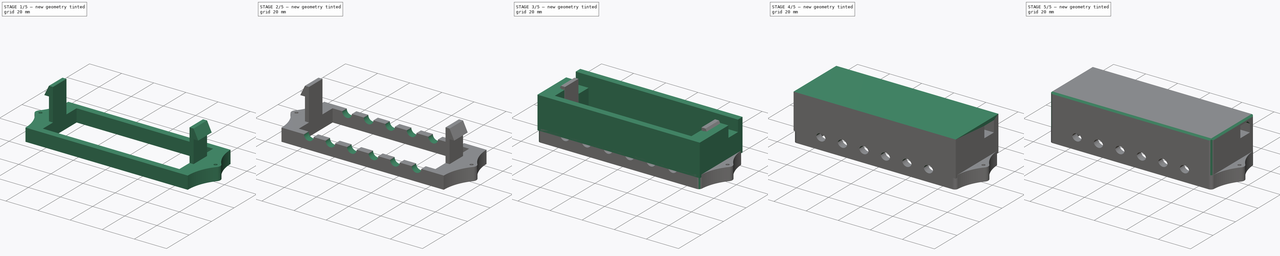
[diagram: build sequence overview — one tinted view per stage of 5, left to right]
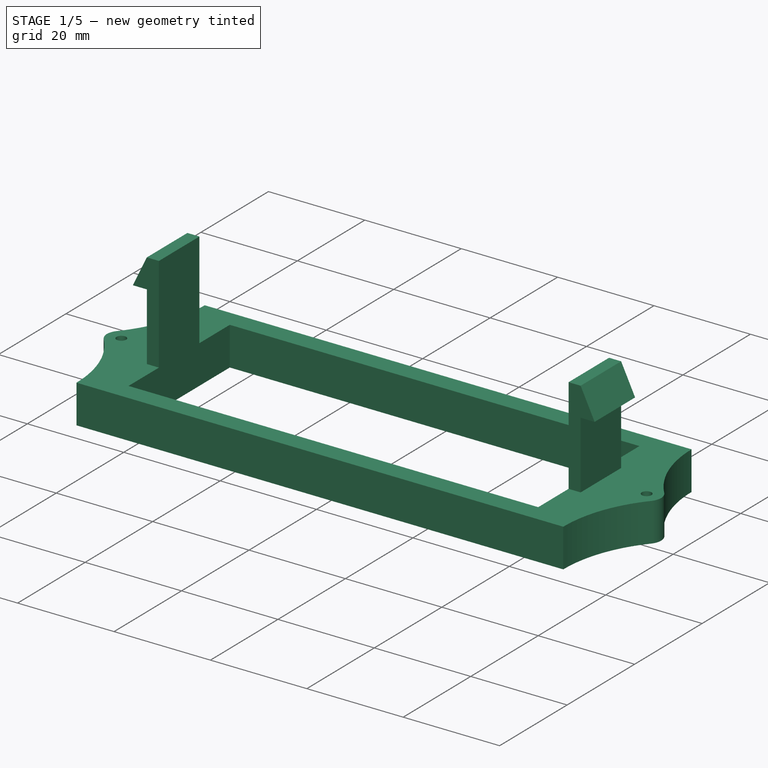
[diagram: stage 1 of 5 — iso view after this stage's code; geometry added in this stage tinted green]
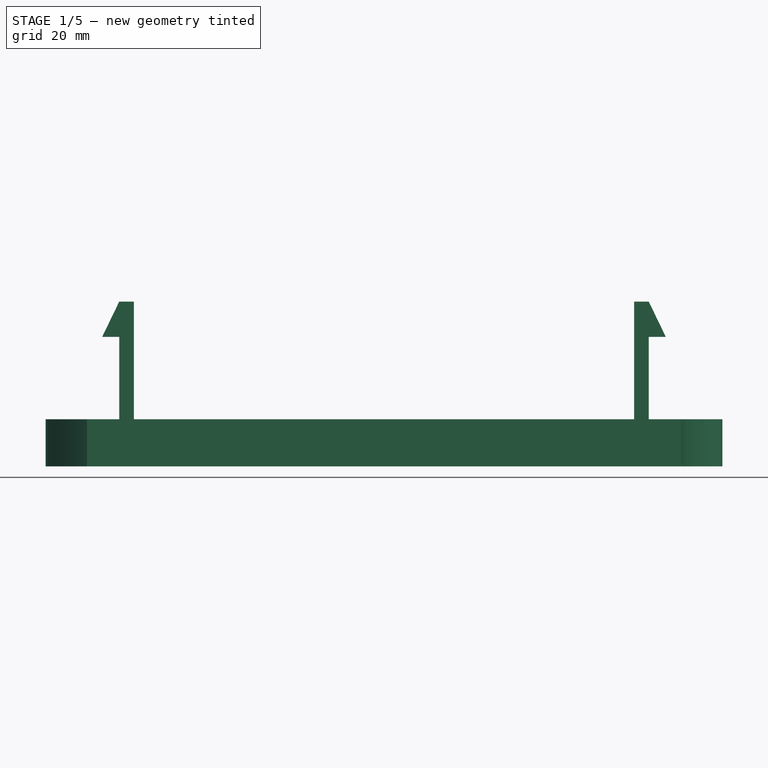
[diagram: stage 1 of 5 — front view after this stage's code; geometry added in this stage tinted green]
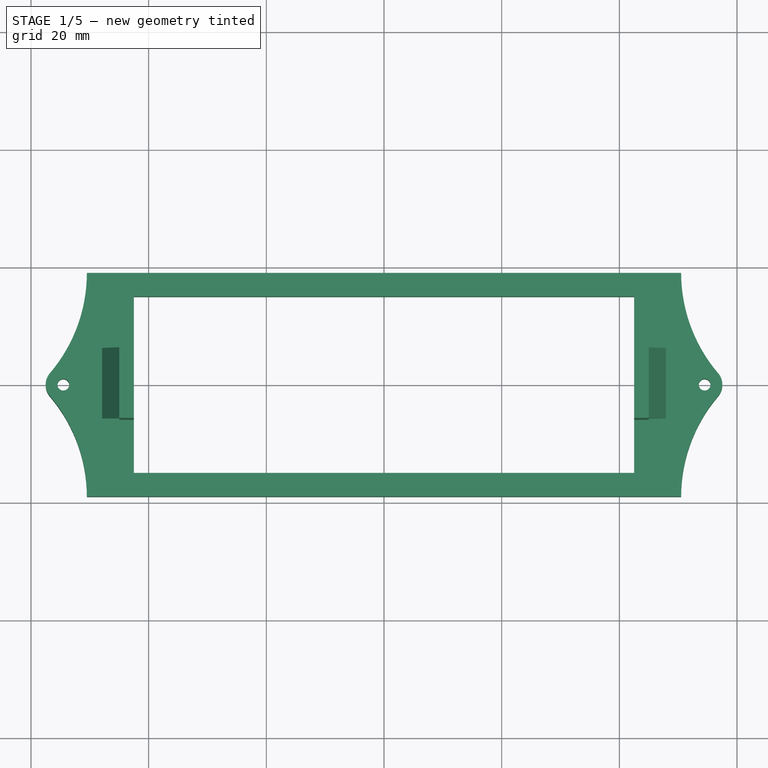
[diagram: stage 1 of 5 — top view after this stage's code; geometry added in this stage tinted green]
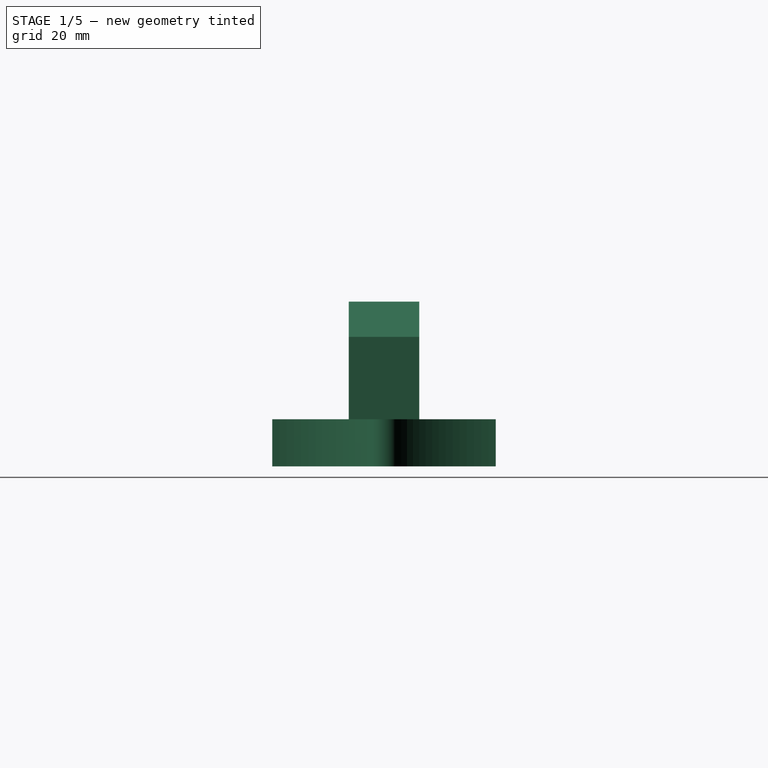
[diagram: stage 1 of 5 — right view after this stage's code; geometry added in this stage tinted green]
FCSTD DOCUMENT  (FreeCAD 2021.1015R24301 +3962 (Git))
Label: electrical cover
License: All rights reserved
LicenseURL: http://en.wikipedia.org/wiki/All_rights_reserved
objects: Sketcher::SketchObject×9, PartDesign::Pad×6, PartDesign::Pocket×3, PartDesign::Chamfer×3, PartDesign::LinearPattern×2, PartDesign::Fillet×2, PartDesign::Body×2, Spreadsheet::Sheet×1, PartDesign::ShapeBinder×1
note: 60 computed .brp shape members not serialized (recipe doc carries the construction recipe); baked Part::Feature solids carry a one-line shape summary decoded from their .brp

FEATURE [Spreadsheet::Sheet] Spreadsheet  label="dim"
  PythonMode = false
  cells = A2='panel_width; B2(panel_width)=85; A3='panel_height; B3(panel_height)=30; A4='bracket_top_down_wall; B4(bracket_top_down_wall)=4; A5='bracket_left_right_wall; B5(bracket_left_right_wall)=8; A6='bracket_mount_hole; B6(bracket_mount_hole)=2; A7='bracket_mount_hole_wall; B7(bracket_mount_hole_wall)=2; A8='bracket_mount_hole_riser; B8(bracket_mount_hole_riser)=0.01; A9='bracket_thickness; B9(bracket_thickness)=5; A11='lock_x; B11(lock_x)=2.5; A12='lock_y; B12(lock_y)=12; A13='lock_height; B13(lock_height)=21; A14='lock_flap_height; B14(lock_flap_height)=6; A15='lock_flap_x; B15(lock_flap_x)=3; A16='lock_hole_slack; B16(lock_hole_slack)=0.5; A18='cover_height; B18(cover_height)=20; A19='cover_roof_height; B19(cover_roof_height)=2; A21='cable_hole_d; B21(cable_hole_d)=6; A22='cable_hole_count; B22(cable_hole_count)=6; A23='cable_hole_total; B23(cable_hole_total)=67
FEATURE [Sketcher::SketchObject] Sketch
  FullyConstrained = true
  MapMode = 5
  Support = -> [XY_Plane]
  expr: Constraints[0] = <<dim>>.panel_height
  expr: Constraints[11] = <<dim>>.bracket_mount_hole_wall + <<dim>>.bracket_mount_hole
  expr: Constraints[28] = <<dim>>.bracket_top_down_wall
  expr: Constraints[2] = <<dim>>.bracket_left_right_wall
  expr: Constraints[33] = <<dim>>.panel_width
  expr: Constraints[39] = <<dim>>.bracket_mount_hole / 2 + <<dim>>.bracket_mount_hole_wall
  expr: Constraints[3] = <<dim>>.bracket_mount_hole
  sketch-geometry (15):
    g0: LineSegment StartX=42.5 StartY=15 StartZ=0 EndX=42.5 EndY=-15 EndZ=0
    g1: Circle CenterX=54.5 CenterY=0 CenterZ=0 NormalX=0 NormalY=0 NormalZ=1 AngleXU=0 Radius=1
    g2: ArcOfCircle CenterX=76.7857 CenterY=19 CenterZ=0 NormalX=0 NormalY=0 NormalZ=1 AngleXU=0 Radius=26.2857 StartAngle=3.14159 EndAngle=3.84757
    g3: ArcOfCircle CenterX=54.5 CenterY=0 CenterZ=0 NormalX=0 NormalY=0 NormalZ=1 AngleXU=0 Radius=3 StartAngle=5.5772 EndAngle=6.98917
    g4: ArcOfCircle CenterX=76.7857 CenterY=-19 CenterZ=0 NormalX=0 NormalY=0 NormalZ=1 AngleXU=0 Radius=26.2857 StartAngle=2.43561 EndAngle=3.14159
    g5: LineSegment StartX=42.5 StartY=15 StartZ=0 EndX=-42.5 EndY=15 EndZ=0
    g6: LineSegment StartX=-42.5 StartY=15 StartZ=0 EndX=-42.5 EndY=-15 EndZ=0
    g7: LineSegment StartX=-42.5 StartY=-15 StartZ=0 EndX=42.5 EndY=-15 EndZ=0
    g8: LineSegment StartX=50.5 StartY=19 StartZ=0 EndX=-50.5 EndY=19 EndZ=0
    g9: LineSegment StartX=50.5 StartY=-19 StartZ=0 EndX=-50.5 EndY=-19 EndZ=0
    g10: ArcOfCircle CenterX=-76.7857 CenterY=19 CenterZ=0 NormalX=0 NormalY=0 NormalZ=1 AngleXU=0 Radius=26.2857 StartAngle=5.5772 EndAngle=6.28319
    g11: ArcOfCircle CenterX=-76.7857 CenterY=-19 CenterZ=0 NormalX=0 NormalY=0 NormalZ=1 AngleXU=0 Radius=26.2857 StartAngle=0 EndAngle=0.705981
    g12: ArcOfCircle CenterX=-54.5 CenterY=0 CenterZ=0 NormalX=0 NormalY=0 NormalZ=1 AngleXU=0 Radius=3 StartAngle=2.43561 EndAngle=3.84757
    g13: Circle CenterX=-54.5 CenterY=0 CenterZ=0 NormalX=0 NormalY=0 NormalZ=1 AngleXU=0 Radius=1
    g14: GeomPoint [constr] X=57.5 Y=0 Z=0
  constraints (40):
    c: DistanceY(g0,g0) = 30
    c: PointOnObject(g1,g-1)
    c: DistanceX(g0,g2) = 8
    c: Diameter(g1) = 2
    c: Coincident(g3,g1)
    c: Symmetric(g2,g4,g-1)
    c: Symmetric(g0,g0,g-1)
    c: Tangent(g3,g2) = 1.5708
    c: Tangent(g4,g3) = 1.5708
    c: Horizontal(g4,g4)
    c: Horizontal(g2,g2)
    c: DistanceX(g2,g1) = 4
    c: Coincident(g0,g5)
    c: Coincident(g5,g6)
    c: Vertical(g6)
    c: Coincident(g6,g7)
    c: Coincident(g7,g0)
    c: Horizontal(g7)
    c: Symmetric(g0,g5,g-1)
    c: Coincident(g8,g2)
    c: Coincident(g9,g4)
    c: Horizontal(g9)
    c: Symmetric(g4,g8,g-1)
    c: Coincident(g10,g8)
    c: Coincident(g11,g9)
    c: PointOnObject(g12,g-1)
    c: Equal(g2,g10)
    c: Equal(g10,g11)
    c: DistanceY(g0,g2) = 4
    c: Tangent(g12,g11) = 1.5708
    c: Tangent(g12,g10) = 1.5708
    c: Horizontal(g10,g2)
    c: Vertical(g10,g11)
    c: DistanceX(g5,g5) = 85
    c: Equal(g12,g3)
    c: Coincident(g13,g12)
    c: Equal(g13,g1)
    c: PointOnObject(g14,g3)
    c: PointOnObject(g14,g-1)
    c: DistanceX(g1,g14) = 3
FEATURE [PartDesign::Pad] Pad
  ClaimChildren = false
  Direction = (1,1,1)
  Fit = 0
  FitJoin = 0
  InnerFit = 0
  InnerFitJoin = 0
  InnerTaperAngle = 0
  InnerTaperAngleRev = 0
  Length = 8
  Length2 = 100
  NewSolid = false
  Profile = -> Sketch
  Refine = true
  Suppress = false
  Type = 0
  _ProfileBasedVersion = 0
  expr: Length = <<dim>>.bracket_thickness + <<dim>>.cable_hole_d / 2
FEATURE [Sketcher::SketchObject] Sketch001
  AttachmentOffset = pos=(0,0,7) rot=(0,0,1;0rad)
  ExternalGeometry = -> [Pad]
  FullyConstrained = true
  MapMode = 5
  Placement = pos=(0,0,7) rot=(0,0,1;0rad)
  Support = -> [XY_Plane]
  expr: Constraints[10] = <<dim>>.lock_y
  expr: Constraints[20] = <<dim>>.lock_x
  expr: Constraints[21] = <<dim>>.lock_y
  expr: Constraints[9] = <<dim>>.lock_x
  sketch-geometry (8):
    g0: LineSegment StartX=42.5 StartY=6 StartZ=0 EndX=45 EndY=6 EndZ=0
    g1: LineSegment StartX=45 StartY=6 StartZ=0 EndX=45 EndY=-6 EndZ=0
    g2: LineSegment StartX=45 StartY=-6 StartZ=0 EndX=42.5 EndY=-6 EndZ=0
    g3: LineSegment StartX=42.5 StartY=-6 StartZ=0 EndX=42.5 EndY=6 EndZ=0
    g4: LineSegment StartX=-42.5 StartY=6 StartZ=0 EndX=-45 EndY=6 EndZ=0
    g5: LineSegment StartX=-45 StartY=6 StartZ=0 EndX=-45 EndY=-6 EndZ=0
    g6: LineSegment StartX=-45 StartY=-6 StartZ=0 EndX=-42.5 EndY=-6 EndZ=0
    g7: LineSegment StartX=-42.5 StartY=-6 StartZ=0 EndX=-42.5 EndY=6 EndZ=0
  constraints (22):
    c: Coincident(g0,g1)
    c: Coincident(g1,g2)
    c: Coincident(g2,g3)
    c: Coincident(g3,g0)
    c: Horizontal(g0)
    c: Horizontal(g2)
    c: Vertical(g3)
    c: PointOnObject(g0,g-4)
    c: Symmetric(g1,g0,g-1)
    c: DistanceX(g0,g0) = 2.5
    c: DistanceY(g3,g3) = 12
    c: Coincident(g4,g5)
    c: Coincident(g5,g6)
    c: Coincident(g6,g7)
    c: Coincident(g7,g4)
    c: Horizontal(g4)
    c: Horizontal(g6)
    c: Vertical(g7)
    c: PointOnObject(g4,g-5)
    c: Symmetric(g5,g4,g-1)
    c: DistanceX(g4,g4) = 2.5
    c: DistanceY(g5,g5) = 12
FEATURE [PartDesign::Pad] Pad001
  BaseFeature = -> Pad
  ClaimChildren = false
  Direction = (1,1,1)
  Fit = 0
  FitJoin = 0
  InnerFit = 0
  InnerFitJoin = 0
  InnerTaperAngle = 0
  InnerTaperAngleRev = 0
  Length = 21
  Length2 = 100
  NewSolid = false
  Profile = -> Sketch001
  Refine = true
  Suppress = false
  Type = 0
  _ProfileBasedVersion = 0
  expr: Length = <<dim>>.lock_height
FEATURE [Sketcher::SketchObject] Sketch002
  ExternalGeometry = -> [Pad001]
  FullyConstrained = true
  MapMode = 5
  Placement = pos=(0,-6,0) rot=(1,0,0;1.5708rad)
  Support = -> [Pad001]
  expr: Constraints[10] = <<dim>>.lock_flap_x
  expr: Constraints[19] = <<dim>>.lock_flap_height
  expr: Constraints[20] = <<dim>>.lock_flap_x
  expr: Constraints[9] = <<dim>>.lock_flap_height
  sketch-geometry (8):
    g0: LineSegment StartX=45 StartY=28 StartZ=0 EndX=47.9 EndY=22 EndZ=0
    g1: LineSegment StartX=47.9 StartY=22 StartZ=0 EndX=44.9 EndY=22 EndZ=0
    g2: LineSegment StartX=44.9 StartY=22 StartZ=0 EndX=44.9 EndY=28 EndZ=0
    g3: LineSegment StartX=44.9 StartY=28 StartZ=0 EndX=45 EndY=28 EndZ=0
    g4: LineSegment StartX=-45 StartY=28 StartZ=0 EndX=-47.9 EndY=22 EndZ=0
    g5: LineSegment StartX=-47.9 StartY=22 StartZ=0 EndX=-44.9 EndY=22 EndZ=0
    g6: LineSegment StartX=-44.9 StartY=22 StartZ=0 EndX=-44.9 EndY=28 EndZ=0
    g7: LineSegment StartX=-44.9 StartY=28 StartZ=0 EndX=-45 EndY=28 EndZ=0
  constraints (22):
    c: Coincident(g-3,g0)
    c: Coincident(g0,g1)
    c: Horizontal(g1)
    c: Coincident(g1,g2)
    c: Vertical(g2)
    c: Coincident(g2,g3)
    c: Coincident(g3,g0)
    c: Horizontal(g3)
    c: DistanceX(g3,g3) = 0.1
    c: DistanceY(g2,g2) = 6
    c: DistanceX(g1,g1) = 3
    c: Coincident(g4,g5)
    c: Horizontal(g5)
    c: Coincident(g5,g6)
    c: Vertical(g6)
    c: Coincident(g6,g7)
    c: Coincident(g7,g4)
    c: Horizontal(g7)
    c: DistanceX(g7,g7) = 0.1
    c: DistanceY(g6,g6) = 6
    c: DistanceX(g5,g5) = 3
    c: Coincident(g4,g-4)
FEATURE [PartDesign::Pad] Pad002
  BaseFeature = -> Pad001
  ClaimChildren = false
  Direction = (1,1,1)
  Fit = 0
  FitJoin = 0
  InnerFit = 0
  InnerFitJoin = 0
  InnerTaperAngle = 0
  InnerTaperAngleRev = 0
  Length = 12
  Length2 = 100
  NewSolid = false
  Profile = -> Sketch002
  Refine = true
  Reversed = true
  Suppress = false
  Type = 0
  _ProfileBasedVersion = 0
  expr: Length = <<dim>>.lock_y
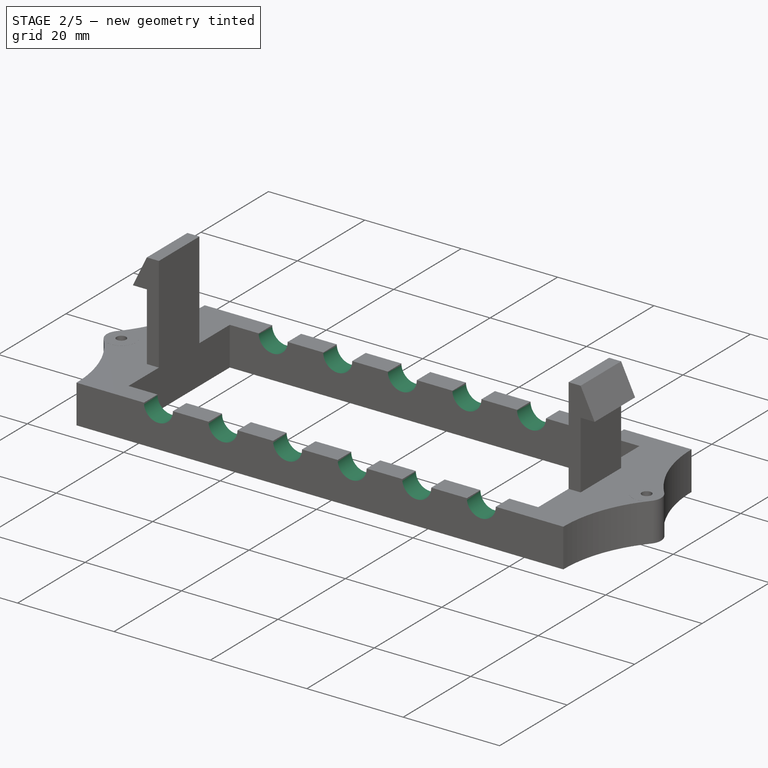
[diagram: stage 2 of 5 — iso view after this stage's code; geometry added in this stage tinted green]
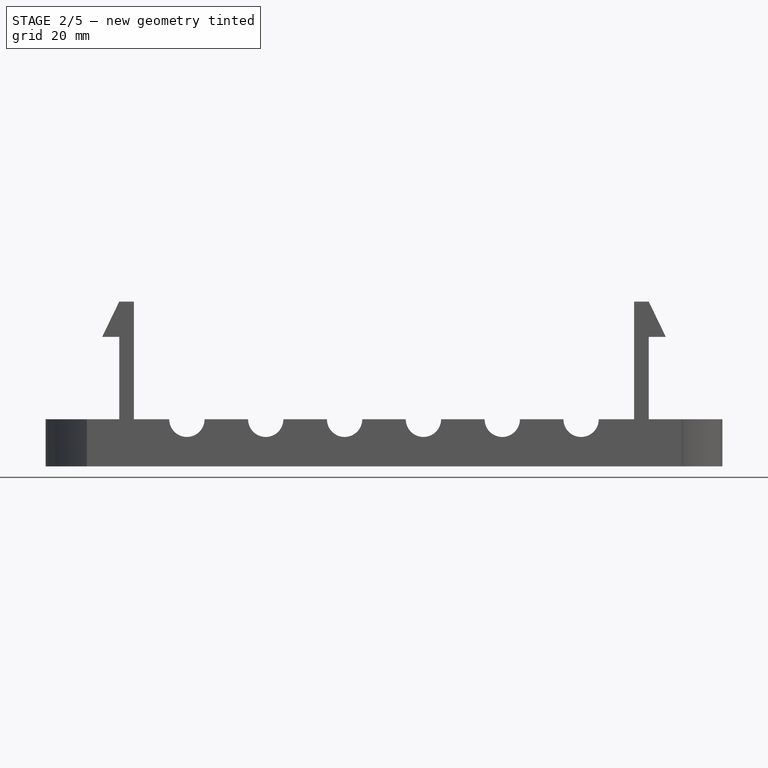
[diagram: stage 2 of 5 — front view after this stage's code; geometry added in this stage tinted green]
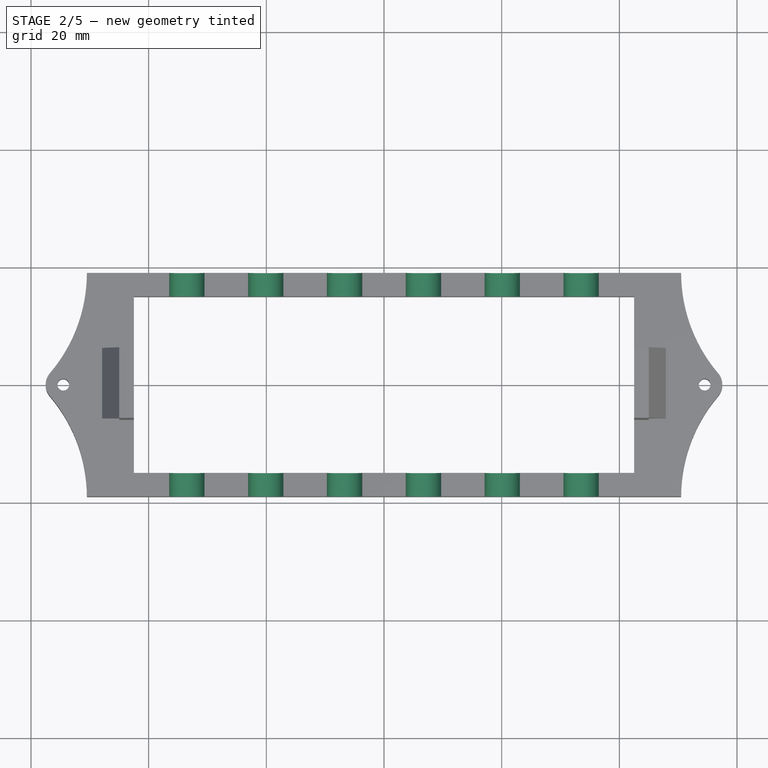
[diagram: stage 2 of 5 — top view after this stage's code; geometry added in this stage tinted green]
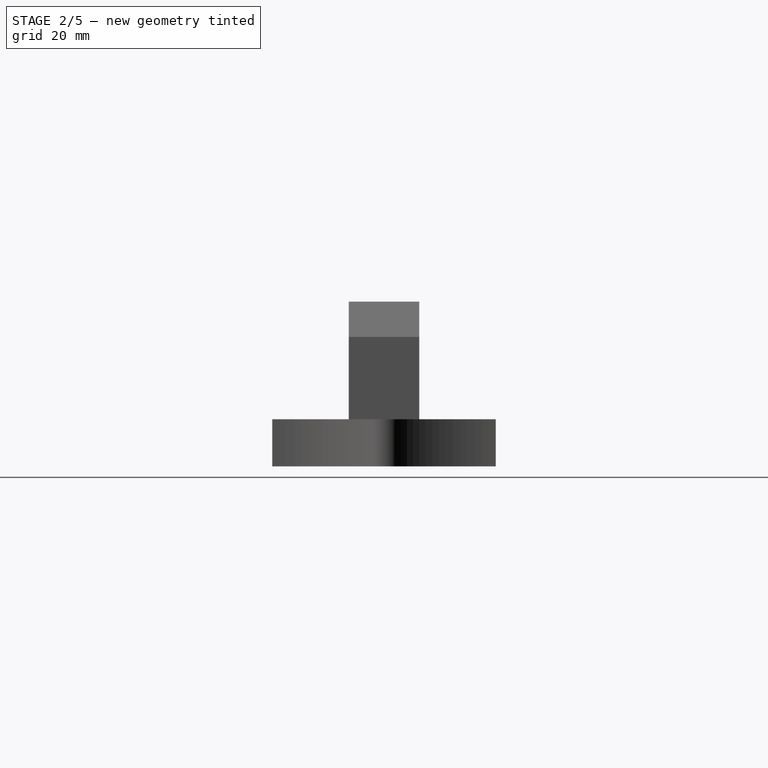
[diagram: stage 2 of 5 — right view after this stage's code; geometry added in this stage tinted green]
FEATURE [Sketcher::SketchObject] Sketch007
  ExternalGeometry = -> [Pad002]
  FullyConstrained = true
  MapMode = 5
  Placement = pos=(0,0,8) rot=(0,0,1;0rad)
  Support = -> [Pad002]
  sketch-geometry (6):
    g0: Circle CenterX=54.5 CenterY=0 CenterZ=0 NormalX=0 NormalY=0 NormalZ=1 AngleXU=0 Radius=1
    g1: GeomPoint [constr] X=57.5 Y=0 Z=0
    g2: Circle CenterX=54.5 CenterY=0 CenterZ=0 NormalX=0 NormalY=0 NormalZ=1 AngleXU=0 Radius=3
    g3: Circle CenterX=-54.5 CenterY=0 CenterZ=0 NormalX=0 NormalY=0 NormalZ=1 AngleXU=0 Radius=1
    g4: GeomPoint [constr] X=-57.5 Y=0 Z=0
    g5: Circle CenterX=-54.5 CenterY=0 CenterZ=0 NormalX=0 NormalY=0 NormalZ=1 AngleXU=0 Radius=3
  constraints (12):
    c: Coincident(g0,g-3)
    c: Equal(g0,g-3)
    c: PointOnObject(g1,g-5)
    c: PointOnObject(g1,g-1)
    c: Coincident(g2,g0)
    c: PointOnObject(g1,g2)
    c: Coincident(g3,g-4)
    c: Equal(g-4,g3)
    c: PointOnObject(g4,g-6)
    c: PointOnObject(g4,g-1)
    c: Coincident(g5,g3)
    c: PointOnObject(g4,g5)
FEATURE [PartDesign::Pad] Pad005
  BaseFeature = -> Pad002
  ClaimChildren = false
  Direction = (1,1,1)
  Fit = 0
  FitJoin = 0
  InnerFit = 0
  InnerFitJoin = 0
  InnerTaperAngle = 0
  InnerTaperAngleRev = 0
  Length = 0.01
  Length2 = 100
  NewSolid = false
  Profile = -> Sketch007
  Refine = true
  Suppress = false
  Type = 0
  _ProfileBasedVersion = 0
  expr: Length = <<dim>>.bracket_mount_hole_riser
FEATURE [Sketcher::SketchObject] Sketch008
  ExternalGeometry = -> [Pad005]
  FullyConstrained = true
  MapMode = 5
  Placement = pos=(0,-15,0) rot=(0,0.707107,0.707107;3.14159rad)
  Support = -> [Pad005]
  expr: Constraints[1] = <<dim>>.cable_hole_d
  expr: Constraints[2] = <<dim>>.cable_hole_total / 2
  sketch-geometry (1):
    g0: Circle CenterX=33.5 CenterY=8 CenterZ=0 NormalX=0 NormalY=0 NormalZ=1 AngleXU=0 Radius=3
  constraints (3):
    c: PointOnObject(g0,g-5)
    c: Diameter(g0) = 6
    c: DistanceX(g-1,g0) = 33.5
FEATURE [PartDesign::Pocket] Pocket001
  BaseFeature = -> Pad005
  ClaimChildren = false
  Fit = 0
  FitJoin = 0
  InnerFit = 0
  InnerFitJoin = 0
  InnerTaperAngle = 0
  InnerTaperAngleRev = 0
  Length = 5
  Length2 = 100
  Midplane = true
  NewSolid = false
  Profile = -> Sketch008
  Refine = true
  Suppress = false
  Type = 1
  _ProfileBasedVersion = 0
FEATURE [PartDesign::LinearPattern] LinearPattern
  BaseFeature = -> Pocket001
  CopyShape = true
  Direction = -> Sketch008 [H_Axis]
  Length = 67
  NewSolid = false
  Occurrences = 6
  OriginalSubs = -> [Pocket001]
  Originals = -> [Pocket001]
  ParallelTransform = true
  Refine = true
  Reversed = true
  SubTransform = true
  Suppress = false
  expr: Length = <<dim>>.cable_hole_total
  expr: Occurrences = <<dim>>.cable_hole_count
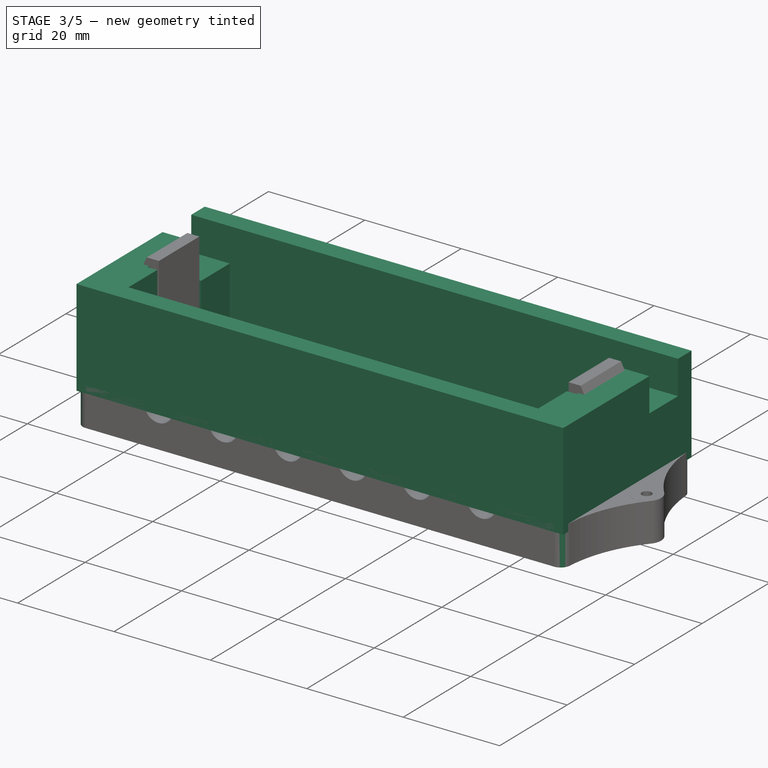
[diagram: stage 3 of 5 — iso view after this stage's code; geometry added in this stage tinted green]
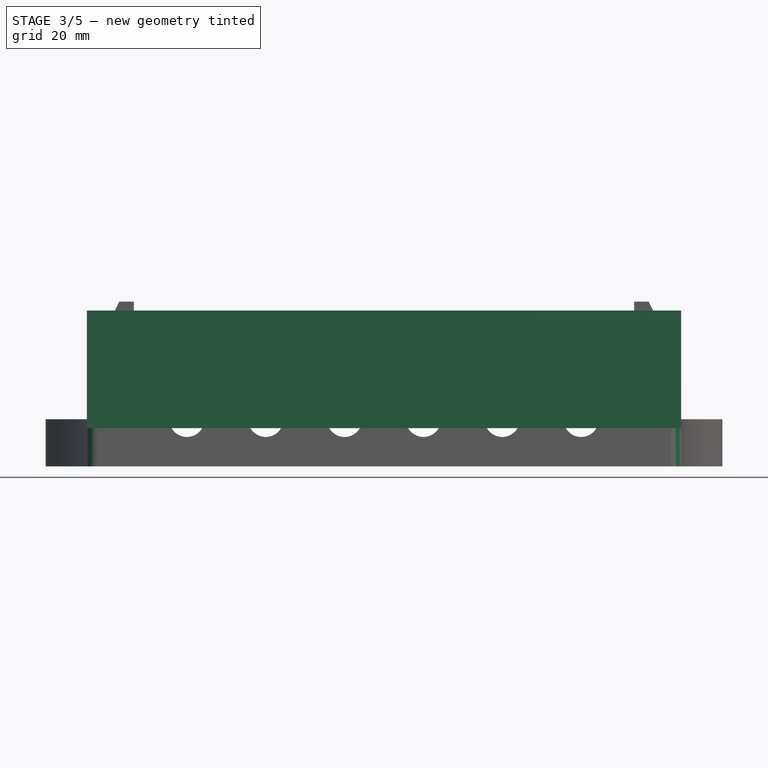
[diagram: stage 3 of 5 — front view after this stage's code; geometry added in this stage tinted green]
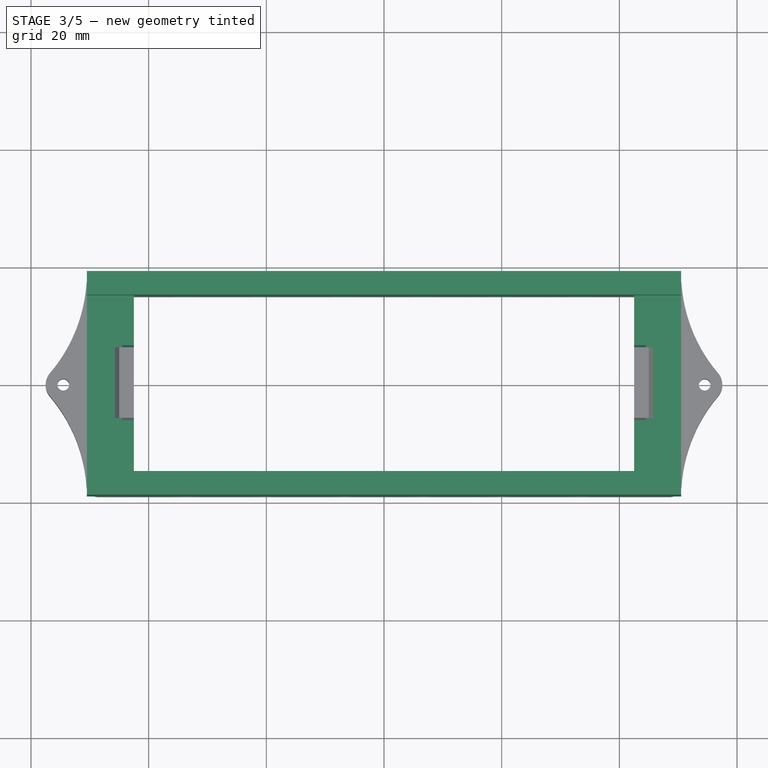
[diagram: stage 3 of 5 — top view after this stage's code; geometry added in this stage tinted green]
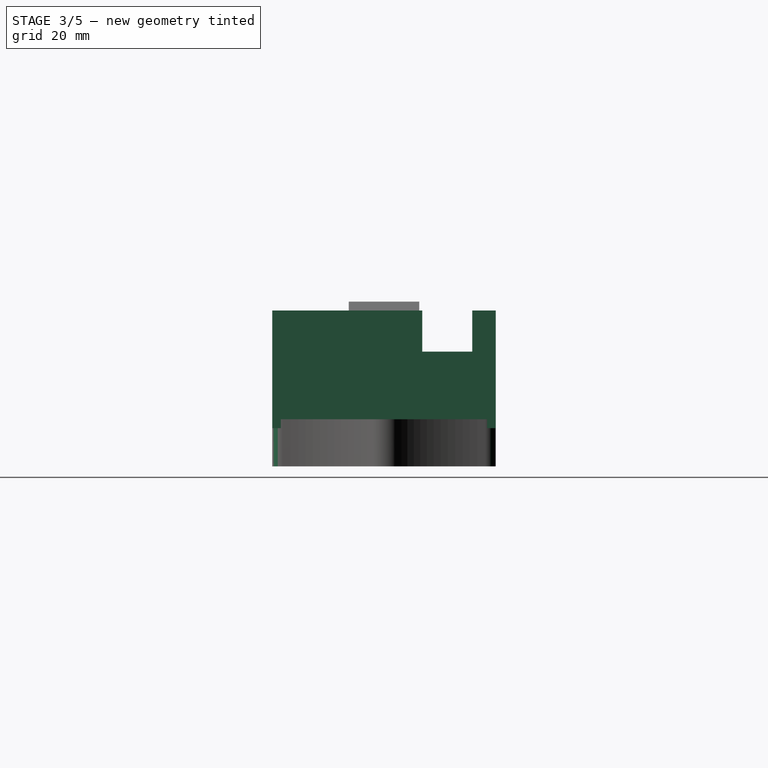
[diagram: stage 3 of 5 — right view after this stage's code; geometry added in this stage tinted green]
FEATURE [PartDesign::ShapeBinder] ShapeBinder
  Support = -> [Pad002]
  TraceSupport = false
FEATURE [Sketcher::SketchObject] Sketch003
  AttachmentOffset = pos=(0,0,6.5) rot=(0,0,1;0rad)
  ExternalGeometry = -> [ShapeBinder]
  FullyConstrained = true
  MapMode = 5
  Placement = pos=(0,0,6.5) rot=(0,0,1;0rad)
  Support = -> [XY_Plane001]
  expr: AttachmentOffset.Base.z = <<dim>>.bracket_thickness + <<dim>>.lock_height - <<dim>>.cover_height + <<dim>>.lock_hole_slack
  expr: Constraints[31] = -<<dim>>.panel_width
  expr: Constraints[32] = <<dim>>.panel_height
  expr: Constraints[35] = <<dim>>.lock_hole_slack
  expr: Constraints[38] = <<dim>>.lock_hole_slack
  sketch-geometry (16):
    g0: LineSegment StartX=-42.5 StartY=-15 StartZ=0 EndX=-42.5 EndY=-6.5 EndZ=0
    g1: LineSegment StartX=-42.5 StartY=-6.5 StartZ=0 EndX=-44.5 EndY=-6.5 EndZ=0
    g2: LineSegment StartX=-44.5 StartY=-6.5 StartZ=0 EndX=-44.5 EndY=6.5 EndZ=0
    g3: LineSegment StartX=-44.5 StartY=6.5 StartZ=0 EndX=-42.5 EndY=6.5 EndZ=0
    g4: LineSegment StartX=-42.5 StartY=6.5 StartZ=0 EndX=-42.5 EndY=15 EndZ=0
    g5: LineSegment StartX=50.5 StartY=19 StartZ=0 EndX=50.5 EndY=-19 EndZ=0
    g6: LineSegment StartX=50.5 StartY=-19 StartZ=0 EndX=-50.5 EndY=-19 EndZ=0
    g7: LineSegment StartX=-50.5 StartY=-19 StartZ=0 EndX=-50.5 EndY=19 EndZ=0
    g8: LineSegment StartX=-50.5 StartY=19 StartZ=0 EndX=50.5 EndY=19 EndZ=0
    g9: LineSegment StartX=-42.5 StartY=15 StartZ=0 EndX=42.5 EndY=15 EndZ=0
    g10: LineSegment StartX=42.5 StartY=15 StartZ=0 EndX=42.5 EndY=6.5 EndZ=0
    g11: LineSegment StartX=42.5 StartY=6.5 StartZ=0 EndX=44.5 EndY=6.5 EndZ=0
    g12: LineSegment StartX=44.5 StartY=6.5 StartZ=0 EndX=44.5 EndY=-6.5 EndZ=0
    g13: LineSegment StartX=44.5 StartY=-6.5 StartZ=0 EndX=42.5 EndY=-6.5 EndZ=0
    g14: LineSegment StartX=42.5 StartY=-6.5 StartZ=0 EndX=42.5 EndY=-15 EndZ=0
    g15: LineSegment StartX=42.5 StartY=-15 StartZ=0 EndX=-42.5 EndY=-15 EndZ=0
  constraints (41):
    c: Vertical(g0)
    c: Coincident(g0,g1)
    c: Horizontal(g1)
    c: Coincident(g1,g2)
    c: Vertical(g2)
    c: Coincident(g2,g3)
    c: Horizontal(g3)
    c: Coincident(g3,g4)
    c: Vertical(g4)
    c: Coincident(g5,g6)
    c: Coincident(g6,g-5)
    c: Coincident(g6,g7)
    c: Coincident(g7,g8)
    c: Coincident(g8,g5)
    c: Coincident(g4,g9)
    c: Horizontal(g9)
    c: Coincident(g9,g10)
    c: Vertical(g10)
    c: Coincident(g10,g11)
    c: Horizontal(g11)
    c: Coincident(g11,g12)
    c: Vertical(g12)
    c: Coincident(g12,g13)
    c: Horizontal(g13)
    c: Coincident(g13,g14)
    c: Vertical(g14)
    c: Coincident(g14,g15)
    c: Coincident(g15,g0)
    c: Horizontal(g15)
    c: Coincident(g4,g-7)
    c: Coincident(g5,g-6)
    c: DistanceX(g9,g9) = -85
    c: DistanceY(g0,g4) = 30
    c: Coincident(g5,g-3)
    c: Symmetric(g7,g5,g-2)
    c: DistanceY(g-7,g3) = 0.5
    c: Symmetric(g0,g3,g-1)
    c: Horizontal(g0,g13)
    c: DistanceX(g-4,g2) = 0.5
    c: Symmetric(g2,g11,g-2)
    c: Vertical(g14,g9)
FEATURE [PartDesign::Pad] Pad003
  ClaimChildren = false
  Direction = (1,1,1)
  Fit = 0
  FitJoin = 0
  InnerFit = 0
  InnerFitJoin = 0
  InnerTaperAngle = 0
  InnerTaperAngleRev = 0
  Length = 20
  Length2 = 100
  NewSolid = false
  Profile = -> Sketch003
  Refine = true
  Suppress = false
  Type = 0
  _ProfileBasedVersion = 0
  expr: Length = <<dim>>.cover_height
FEATURE [Sketcher::SketchObject] Sketch006
  ExternalGeometry = -> [Pad003]
  FullyConstrained = true
  MapMode = 5
  Placement = pos=(42.5,0,0) rot=(0.57735,-0.57735,-0.57735;2.0944rad)
  Support = -> [Pad003]
  expr: Constraints[9] = <<dim>>.lock_flap_height + 2 * <<dim>>.lock_hole_slack
  sketch-geometry (4):
    g0: LineSegment StartX=-6.5 StartY=26.5 StartZ=0 EndX=-15 EndY=26.5 EndZ=0
    g1: LineSegment StartX=-15 StartY=26.5 StartZ=0 EndX=-15 EndY=19.5 EndZ=0
    g2: LineSegment StartX=-15 StartY=19.5 StartZ=0 EndX=-6.5 EndY=19.5 EndZ=0
    g3: LineSegment StartX=-6.5 StartY=19.5 StartZ=0 EndX=-6.5 EndY=26.5 EndZ=0
  constraints (10):
    c: Coincident(g0,g1)
    c: Coincident(g1,g2)
    c: Coincident(g2,g3)
    c: Coincident(g3,g0)
    c: Horizontal(g2)
    c: Vertical(g1)
    c: Vertical(g3)
    c: Coincident(g0,g-3)
    c: Coincident(g0,g-3)
    c: DistanceY(g1,g1) = 7
FEATURE [PartDesign::Pocket] Pocket
  BaseFeature = -> Pad003
  ClaimChildren = false
  Fit = 0
  FitJoin = 0
  InnerFit = 0
  InnerFitJoin = 0
  InnerTaperAngle = 0
  InnerTaperAngleRev = 0
  Length = 5
  Length2 = 100
  Midplane = true
  NewSolid = false
  Profile = -> Sketch006
  Refine = true
  Suppress = false
  Type = 1
  _ProfileBasedVersion = 0
FEATURE [PartDesign::Fillet] Fillet001
  Base = -> LinearPattern [Edge86,Edge85,Edge1,Edge6]
  BaseFeature = -> LinearPattern
  NewSolid = false
  Radius = 2
  Refine = true
  SupportTransform = false
  Suppress = false
FEATURE [PartDesign::Body] Body001
  AutoGroupSolids = false
  ExportMode = 0
  Group = -> [Sketch003,ShapeBinder,Sketch005,Pad003,Sketch006,Pocket,Pad004,Sketch009,Pocket002,LinearPattern001,Chamfer,Fillet,Chamfer001]
  Origin = -> Origin001
  Placement = pos=(0,0,2) rot=(0,0,1;0rad)
  Tip = -> Chamfer001
  _ExportChildren = -> [ShapeBinder,Pad003,Pocket,Pad004,Pocket002,LinearPattern001,Chamfer,Fillet,Chamfer001]
  _GroupVersion = 1
FEATURE [PartDesign::Chamfer] Chamfer002
  Angle = 45
  Base = -> Fillet001 [Edge37,Edge136,Edge39,Edge41,Edge134,Edge135]
  BaseFeature = -> Fillet001
  ChamferType = 0
  FlipDirection = false
  NewSolid = false
  Refine = true
  Size = 2
  Size2 = 1
  SupportTransform = false
  Suppress = false
FEATURE [PartDesign::Body] Body
  AutoGroupSolids = false
  ExportMode = 0
  Group = -> [Sketch,Pad,Sketch001,Pad001,Sketch002,Pad002,Sketch007,Pad005,Sketch008,Pocket001,LinearPattern,Fillet001,Chamfer002]
  Origin = -> Origin
  Tip = -> Chamfer002
  _ExportChildren = -> [Pad,Pad001,Pad002,Pad005,Pocket001,LinearPattern,Fillet001,Chamfer002]
  _GroupVersion = 1
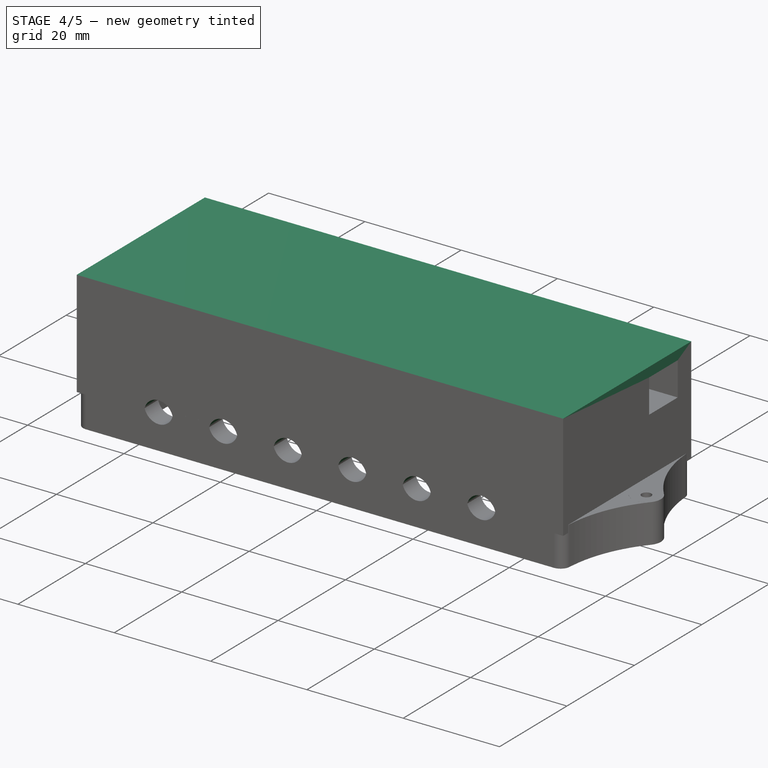
[diagram: stage 4 of 5 — iso view after this stage's code; geometry added in this stage tinted green]
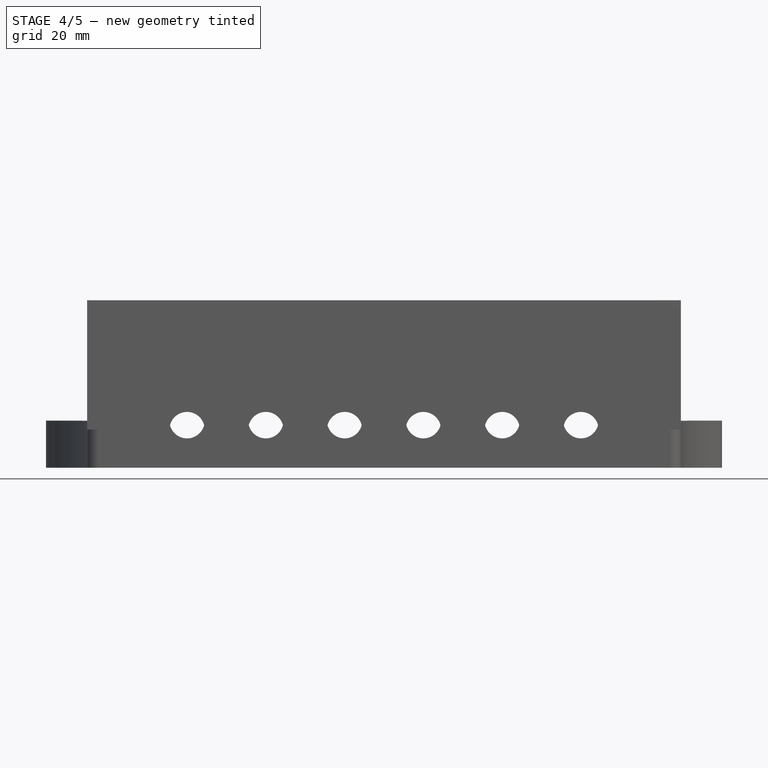
[diagram: stage 4 of 5 — front view after this stage's code; geometry added in this stage tinted green]
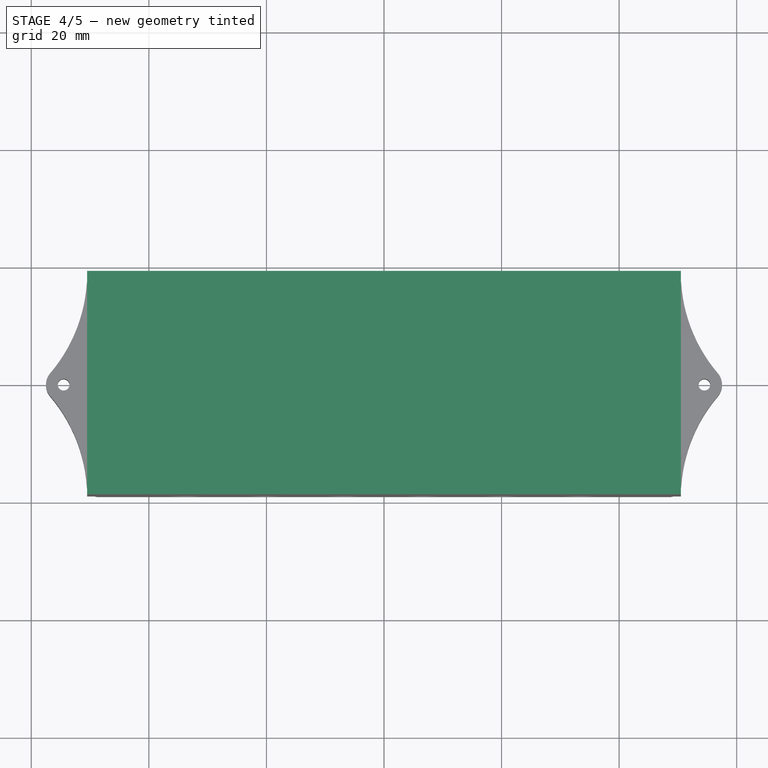
[diagram: stage 4 of 5 — top view after this stage's code; geometry added in this stage tinted green]
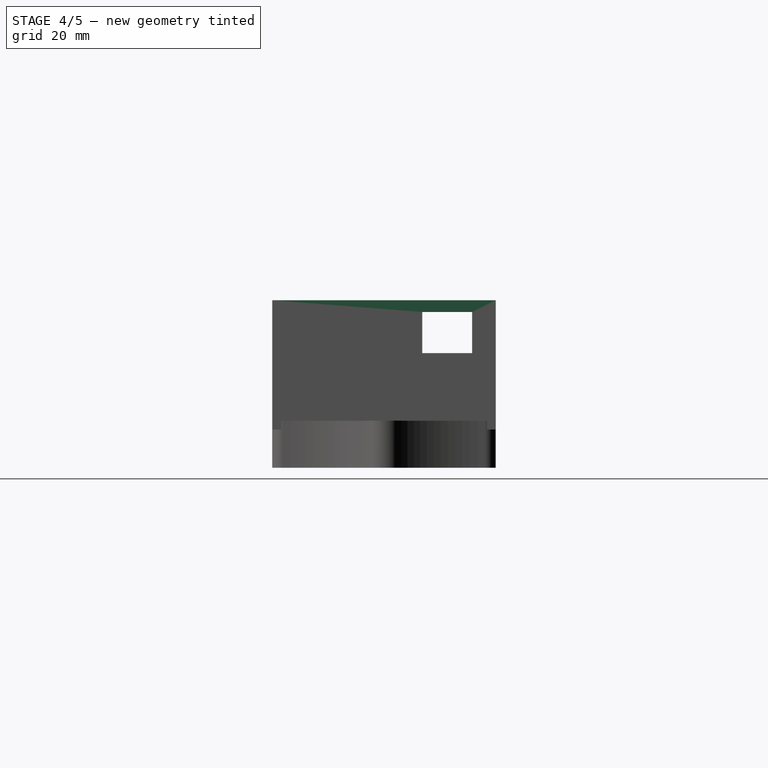
[diagram: stage 4 of 5 — right view after this stage's code; geometry added in this stage tinted green]
FEATURE [Sketcher::SketchObject] Sketch005
  ExternalGeometry = -> [Pocket]
  FullyConstrained = true
  MapMode = 5
  Placement = pos=(0,0,26.5) rot=(0,0,1;0rad)
  expr: Placement.Base.z = Sketch003.Placement.Base.z + Pad003.Length
  sketch-geometry (4):
    g0: LineSegment StartX=-50.5 StartY=19 StartZ=0 EndX=50.5 EndY=19 EndZ=0
    g1: LineSegment StartX=50.5 StartY=19 StartZ=0 EndX=50.5 EndY=-19 EndZ=0
    g2: LineSegment StartX=50.5 StartY=-19 StartZ=0 EndX=-50.5 EndY=-19 EndZ=0
    g3: LineSegment StartX=-50.5 StartY=-19 StartZ=0 EndX=-50.5 EndY=19 EndZ=0
  constraints (10):
    c: Coincident(g0,g1)
    c: Coincident(g1,g2)
    c: Coincident(g2,g3)
    c: Coincident(g3,g0)
    c: Horizontal(g0)
    c: Horizontal(g2)
    c: Vertical(g1)
    c: Vertical(g3)
    c: Coincident(g0,g-4)
    c: Coincident(g1,g-3)
FEATURE [PartDesign::Pad] Pad004
  BaseFeature = -> Pocket
  ClaimChildren = false
  Direction = (1,1,1)
  Fit = 0
  FitJoin = 0
  InnerFit = 0
  InnerFitJoin = 0
  InnerTaperAngle = 0
  InnerTaperAngleRev = 0
  Length = 2
  Length2 = 100
  NewSolid = false
  Profile = -> Sketch005
  Refine = true
  Suppress = false
  Type = 0
  _ProfileBasedVersion = 0
  expr: Length = <<dim>>.cover_roof_height
FEATURE [Sketcher::SketchObject] Sketch009
  ExternalGeometry = -> [Pad004]
  FullyConstrained = true
  MapMode = 5
  Placement = pos=(0,-15,0) rot=(0,0.707107,0.707107;3.14159rad)
  Support = -> [Pad004]
  expr: Constraints[1] = <<dim>>.cable_hole_d
  expr: Constraints[2] = <<dim>>.cable_hole_total / 2
  sketch-geometry (1):
    g0: Circle CenterX=33.5 CenterY=6.5 CenterZ=0 NormalX=0 NormalY=0 NormalZ=1 AngleXU=0 Radius=3
  constraints (3):
    c: PointOnObject(g0,g-3)
    c: Diameter(g0) = 6
    c: DistanceX(g-1,g0) = 33.5
FEATURE [PartDesign::Pocket] Pocket002
  BaseFeature = -> Pad004
  ClaimChildren = false
  Fit = 0
  FitJoin = 0
  InnerFit = 0
  InnerFitJoin = 0
  InnerTaperAngle = 0
  InnerTaperAngleRev = 0
  Length = 5
  Length2 = 100
  Midplane = true
  NewSolid = false
  Profile = -> Sketch009
  Refine = true
  Suppress = false
  Type = 1
  _ProfileBasedVersion = 0
FEATURE [PartDesign::LinearPattern] LinearPattern001
  BaseFeature = -> Pocket002
  CopyShape = true
  Direction = -> Sketch009 [H_Axis]
  Length = 67
  NewSolid = false
  Occurrences = 6
  OriginalSubs = -> [Pocket002]
  Originals = -> [Pocket002]
  ParallelTransform = true
  Refine = true
  Reversed = true
  SubTransform = true
  Suppress = false
  expr: Length = <<dim>>.cable_hole_total
  expr: Occurrences = <<dim>>.cable_hole_count
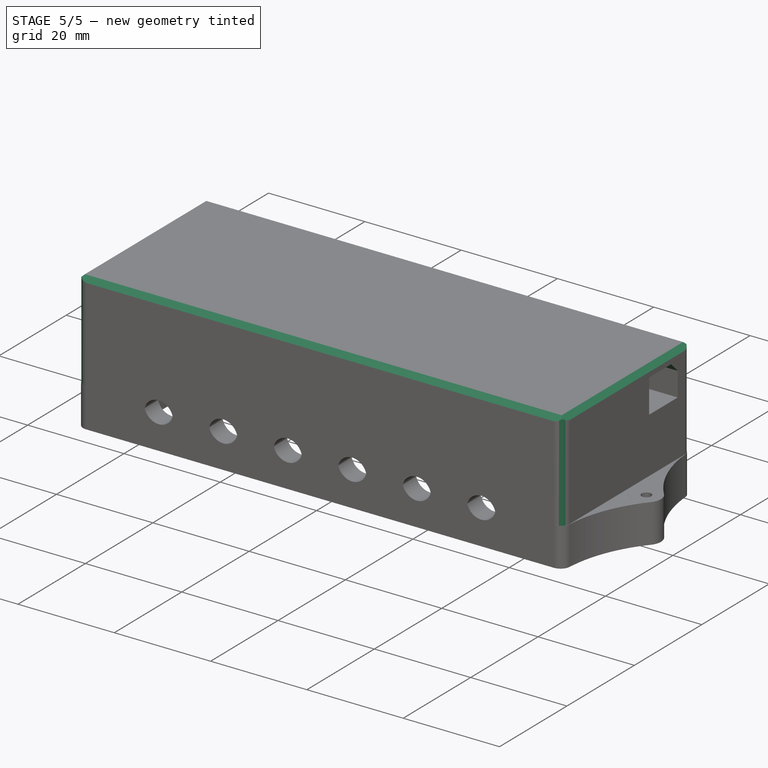
[diagram: stage 5 of 5 — iso view after this stage's code; geometry added in this stage tinted green]
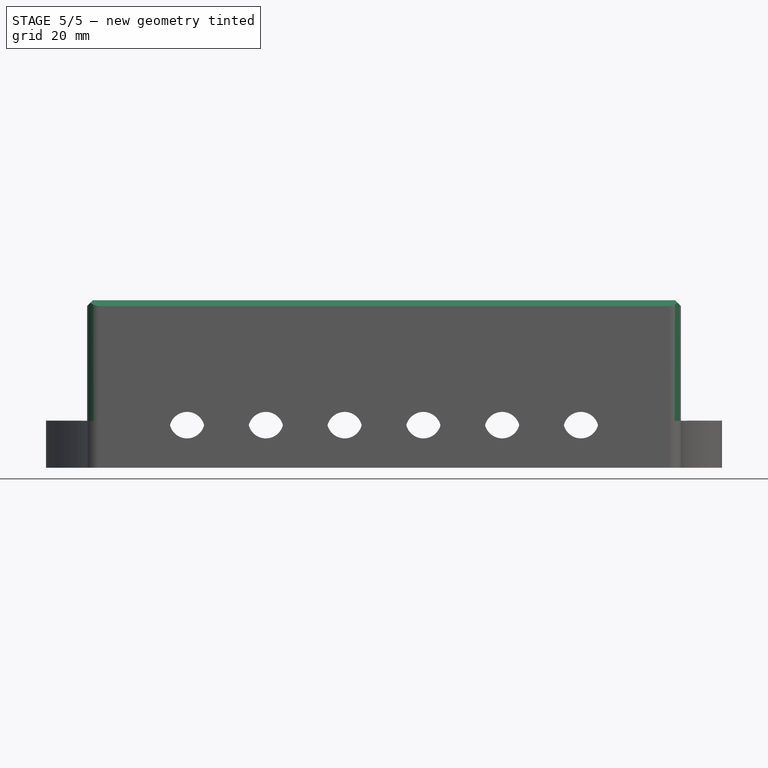
[diagram: stage 5 of 5 — front view after this stage's code; geometry added in this stage tinted green]
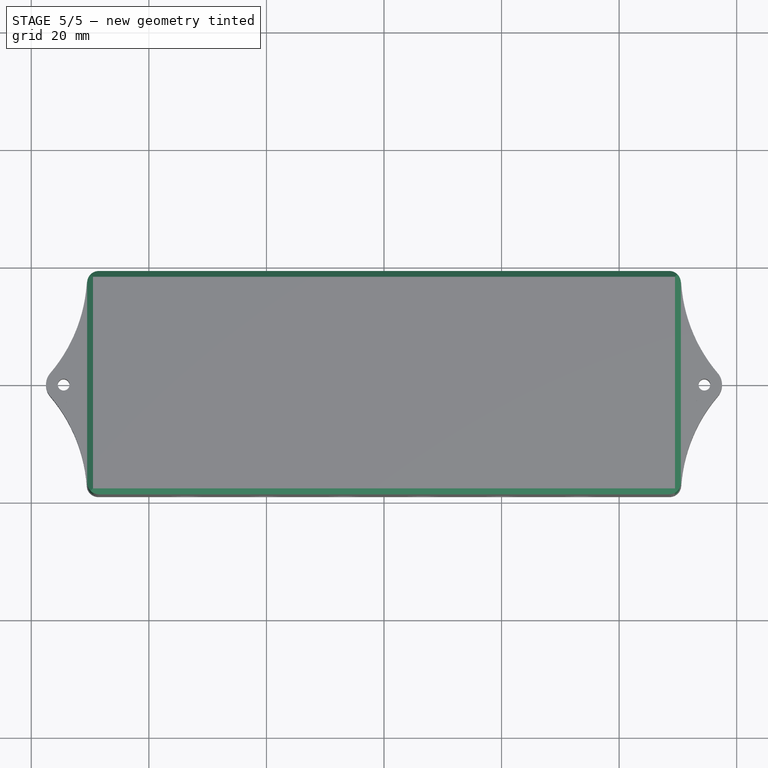
[diagram: stage 5 of 5 — top view after this stage's code; geometry added in this stage tinted green]
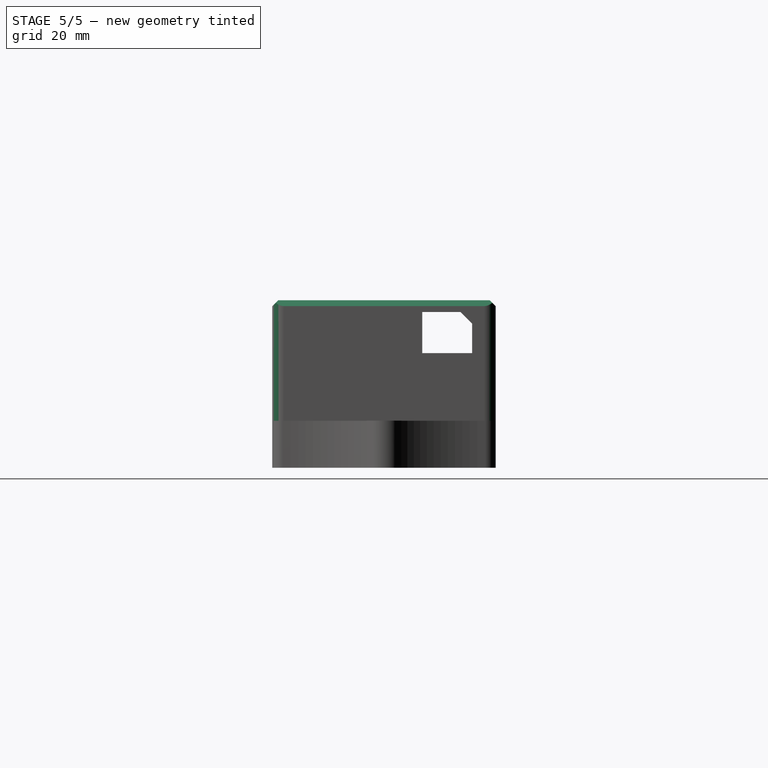
[diagram: stage 5 of 5 — right view after this stage's code; geometry added in this stage tinted green]
FEATURE [PartDesign::Chamfer] Chamfer
  Angle = 45
  Base = -> LinearPattern001 [Face18]
  BaseFeature = -> LinearPattern001
  ChamferType = 0
  FlipDirection = false
  NewSolid = false
  Refine = true
  Size = 1
  Size2 = 1
  SupportTransform = false
  Suppress = false
FEATURE [PartDesign::Fillet] Fillet
  Base = -> Chamfer [Edge11,Edge37,Edge1,Edge4]
  BaseFeature = -> Chamfer
  NewSolid = false
  Radius = 2
  Refine = true
  SupportTransform = false
  Suppress = false
FEATURE [PartDesign::Chamfer] Chamfer001
  Angle = 45
  Base = -> Fillet [Edge50,Edge46,Edge38,Edge34,Edge36,Edge48]
  BaseFeature = -> Fillet
  ChamferType = 0
  FlipDirection = false
  NewSolid = false
  Refine = true
  Size = 2
  Size2 = 1
  SupportTransform = false
  Suppress = false
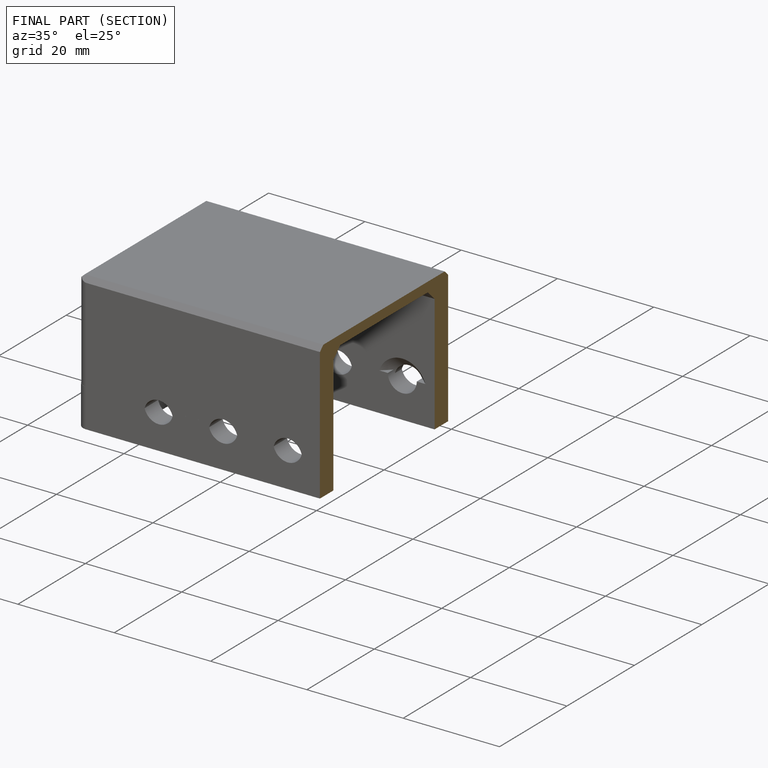
[diagram: finished part — half-section view (interior)]
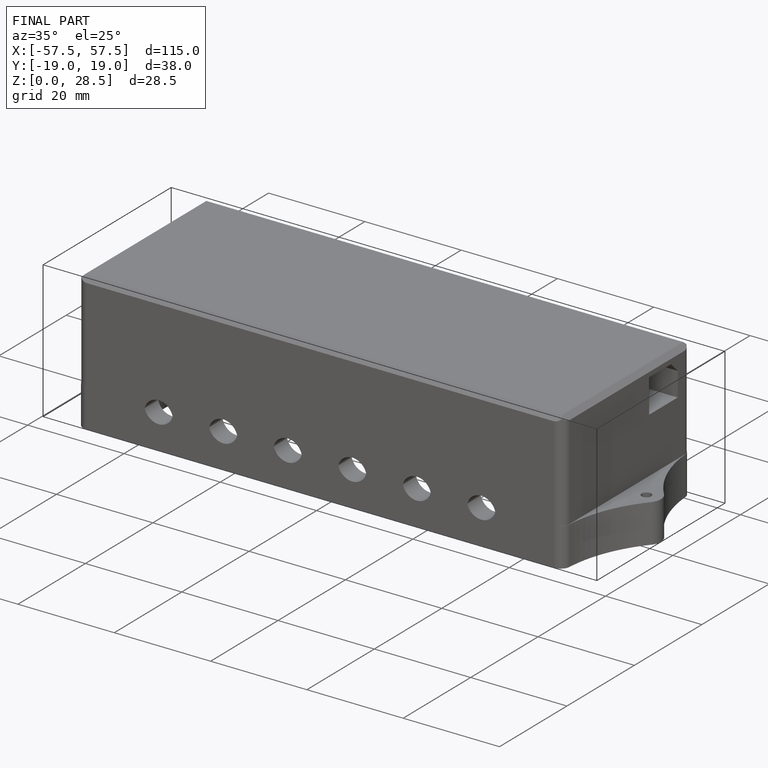
[diagram: finished part — iso view with bounding-box wireframe]
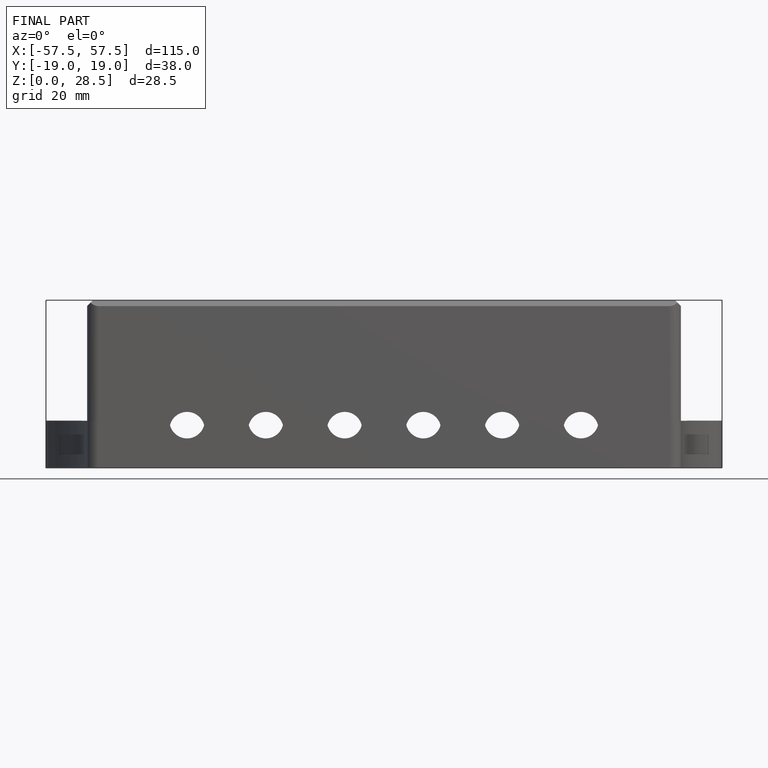
[diagram: finished part — front view with bounding-box wireframe]
